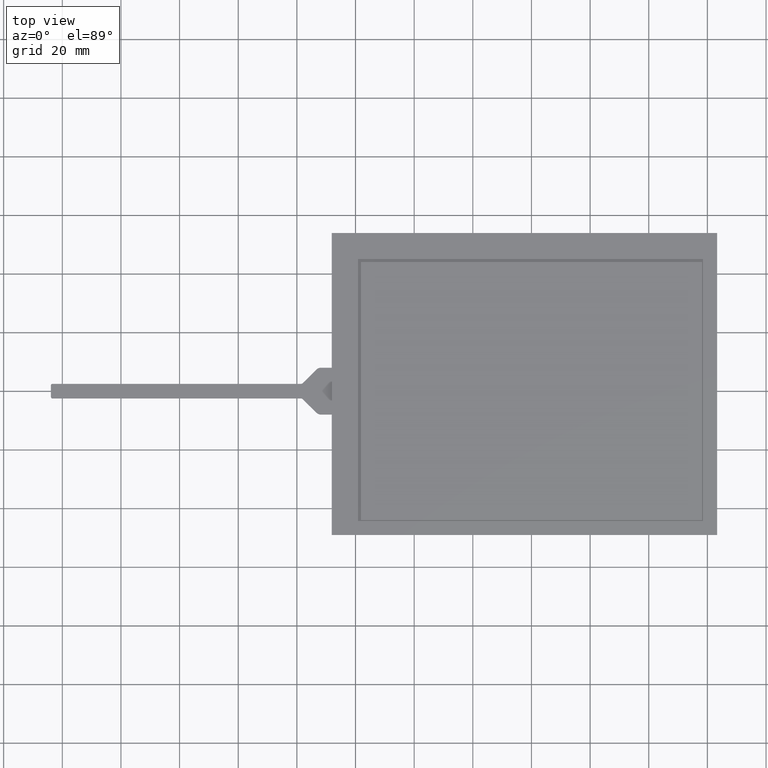
[diagram: clean part render]
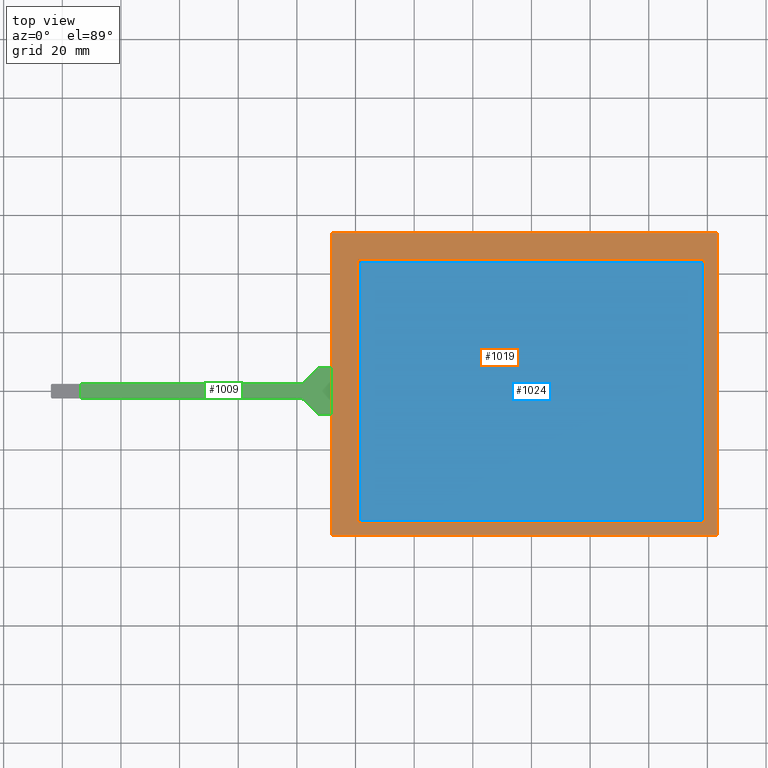
[diagram: same view with three faces highlighted in distinct colors, each labeled with its STEP entity id]
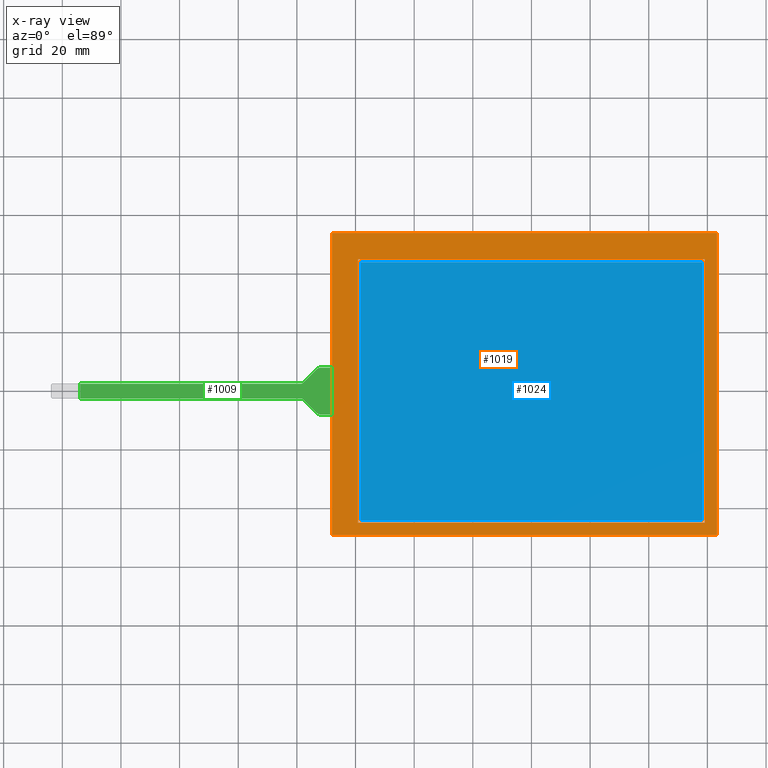
[diagram: x-ray of the same camera — body ghosted, the three highlighted faces saturated]
A machine part, top view with three faces highlighted in distinct colors.
The next image is the same camera in x-ray (body ghosted, the three faces saturated) — at least one of them is partly hidden behind the body in this view.
Their STEP definitions:

[orange] entity #1019 — the highlighted planar face has unit normal (0, 0, 1).
#47=FACE_BOUND('',#191,.T.);
#87=PLANE('',#1102);
#138=FACE_OUTER_BOUND('',#190,.T.);
#190=EDGE_LOOP('',(#933,#934,#935,#936));
#191=EDGE_LOOP('',(#937,#938,#939,#940));
#301=LINE('',#1596,#427);
#305=LINE('',#1604,#431);
#308=LINE('',#1610,#434);
#311=LINE('',#1615,#437);
#313=LINE('',#1621,#439);
#314=LINE('',#1623,#440);
#315=LINE('',#1625,#441);
#316=LINE('',#1626,#442);
#427=VECTOR('',#1317,10.);
#431=VECTOR('',#1323,10.);
#434=VECTOR('',#1328,10.);
#437=VECTOR('',#1333,10.);
#439=VECTOR('',#1339,10.);
#440=VECTOR('',#1340,10.);
#441=VECTOR('',#1341,10.);
#442=VECTOR('',#1342,10.);
#539=VERTEX_POINT('',#1594);
#540=VERTEX_POINT('',#1595);
#543=VERTEX_POINT('',#1603);
#545=VERTEX_POINT('',#1609);
#547=VERTEX_POINT('',#1619);
#548=VERTEX_POINT('',#1620);
#549=VERTEX_POINT('',#1622);
#550=VERTEX_POINT('',#1624);
#669=EDGE_CURVE('',#539,#540,#301,.T.);
#673=EDGE_CURVE('',#543,#539,#305,.T.);
#676=EDGE_CURVE('',#545,#543,#308,.T.);
#679=EDGE_CURVE('',#540,#545,#311,.T.);
#681=EDGE_CURVE('',#547,#548,#313,.T.);
#682=EDGE_CURVE('',#548,#549,#314,.T.);
#683=EDGE_CURVE('',#549,#550,#315,.T.);
#684=EDGE_CURVE('',#550,#547,#316,.T.);
#933=ORIENTED_EDGE('',*,*,#681,.T.);
#934=ORIENTED_EDGE('',*,*,#682,.T.);
#935=ORIENTED_EDGE('',*,*,#683,.T.);
#936=ORIENTED_EDGE('',*,*,#684,.T.);
#937=ORIENTED_EDGE('',*,*,#669,.T.);
#938=ORIENTED_EDGE('',*,*,#679,.T.);
#939=ORIENTED_EDGE('',*,*,#676,.T.);
#940=ORIENTED_EDGE('',*,*,#673,.T.);
#1019=ADVANCED_FACE('',(#138,#47),#87,.T.);
#1102=AXIS2_PLACEMENT_3D('',#1618,#1337,#1338);
#1317=DIRECTION('',(-1.97592529410484E-16,1.,0.));
#1323=DIRECTION('',(-1.,-7.50150692314295E-17,0.));
#1328=DIRECTION('',(9.8796264705242E-17,-1.,0.));
#1333=DIRECTION('',(1.,0.,0.));
#1337=DIRECTION('center_axis',(0.,0.,1.));
#1338=DIRECTION('ref_axis',(1.,0.,0.));
#1339=DIRECTION('',(-1.,0.,0.));
#1340=DIRECTION('',(1.72461829067985E-16,-1.,0.));
#1341=DIRECTION('',(1.,6.75934870395833E-17,0.));
#1342=DIRECTION('',(-8.62309145339927E-17,1.,0.));
#1594=CARTESIAN_POINT('',(-59.2,-44.95,0.));
#1595=CARTESIAN_POINT('',(-59.2,44.95,0.));
#1596=CARTESIAN_POINT('',(-59.2,-21.25,0.));
#1603=CARTESIAN_POINT('',(59.2,-44.95,0.));
#1604=CARTESIAN_POINT('',(28.4,-44.95,0.));
#1609=CARTESIAN_POINT('',(59.2,44.95,0.));
#1610=CARTESIAN_POINT('',(59.2,23.7,0.));
#1615=CARTESIAN_POINT('',(-30.8,44.95,0.));
#1618=CARTESIAN_POINT('Origin',(-2.39999999999998,2.45000000000002,0.));
#1619=CARTESIAN_POINT('',(63.3,53.95,0.));
#1620=CARTESIAN_POINT('',(-68.1,53.95,0.));
#1621=CARTESIAN_POINT('',(63.3,53.95,0.));
#1622=CARTESIAN_POINT('',(-68.1,-49.05,0.));
#1623=CARTESIAN_POINT('',(-68.1,53.95,0.));
#1624=CARTESIAN_POINT('',(63.3,-49.05,0.));
#1625=CARTESIAN_POINT('',(-68.1,-49.05,0.));
#1626=CARTESIAN_POINT('',(63.3,-49.05,0.));

[blue] entity #1024 — the highlighted planar face has unit normal (0, 0, 1).
#92=PLANE('',#1107);
#143=FACE_OUTER_BOUND('',#197,.T.);
#197=EDGE_LOOP('',(#961,#962,#963,#964));
#289=LINE('',#1572,#415);
#293=LINE('',#1580,#419);
#296=LINE('',#1586,#422);
#299=LINE('',#1591,#425);
#415=VECTOR('',#1297,10.);
#419=VECTOR('',#1303,10.);
#422=VECTOR('',#1308,10.);
#425=VECTOR('',#1313,10.);
#531=VERTEX_POINT('',#1570);
#532=VERTEX_POINT('',#1571);
#535=VERTEX_POINT('',#1579);
#537=VERTEX_POINT('',#1585);
#657=EDGE_CURVE('',#531,#532,#289,.T.);
#661=EDGE_CURVE('',#535,#531,#293,.T.);
#664=EDGE_CURVE('',#537,#535,#296,.T.);
#667=EDGE_CURVE('',#532,#537,#299,.T.);
#961=ORIENTED_EDGE('',*,*,#657,.T.);
#962=ORIENTED_EDGE('',*,*,#667,.T.);
#963=ORIENTED_EDGE('',*,*,#664,.T.);
#964=ORIENTED_EDGE('',*,*,#661,.T.);
#1024=ADVANCED_FACE('',(#143),#92,.T.);
#1107=AXIS2_PLACEMENT_3D('',#1643,#1359,#1360);
#1297=DIRECTION('',(1.,1.52607975893492E-16,0.));
#1303=DIRECTION('',(4.04176755267406E-16,-1.,0.));
#1308=DIRECTION('',(-1.,-6.10431903573969E-16,0.));
#1313=DIRECTION('',(-4.04176755267406E-16,1.,0.));
#1359=DIRECTION('center_axis',(0.,0.,1.));
#1360=DIRECTION('ref_axis',(1.,0.,0.));
#1570=CARTESIAN_POINT('',(-58.2,-43.95,0.));
#1571=CARTESIAN_POINT('',(58.2,-43.95,0.));
#1572=CARTESIAN_POINT('',(-30.3,-43.95,0.));
#1579=CARTESIAN_POINT('',(-58.2,43.95,0.));
#1580=CARTESIAN_POINT('',(-58.2,23.2,0.));
#1585=CARTESIAN_POINT('',(58.2,43.9500000000001,0.));
#1586=CARTESIAN_POINT('',(27.9,43.95,0.));
#1591=CARTESIAN_POINT('',(58.2,-20.75,0.));
#1643=CARTESIAN_POINT('Origin',(-2.39999999999998,2.45000000000002,0.));

[green] entity #1009 — the highlighted planar face has unit normal (0, 0, 1).
#77=PLANE('',#1092);
#128=FACE_OUTER_BOUND('',#179,.T.);
#179=EDGE_LOOP('',(#881,#882,#883,#884,#885,#886,#887,#888,#889,#890,#891,
#892));
#203=LINE('',#1378,#329);
#214=LINE('',#1408,#340);
#218=LINE('',#1421,#344);
#283=LINE('',#1558,#409);
#284=LINE('',#1560,#410);
#285=LINE('',#1563,#411);
#287=LINE('',#1566,#413);
#288=LINE('',#1568,#414);
#329=VECTOR('',#1123,10.);
#340=VECTOR('',#1148,10.);
#344=VECTOR('',#1162,10.);
#409=VECTOR('',#1281,10.);
#410=VECTOR('',#1284,10.);
#411=VECTOR('',#1287,10.);
#413=VECTOR('',#1291,10.);
#414=VECTOR('',#1294,10.);
#452=CIRCLE('',#1048,2.);
#456=CIRCLE('',#1055,2.);
#457=CIRCLE('',#1058,1.);
#458=CIRCLE('',#1060,1.);
#465=VERTEX_POINT('',#1368);
#466=VERTEX_POINT('',#1370);
#468=VERTEX_POINT('',#1376);
#478=VERTEX_POINT('',#1400);
#479=VERTEX_POINT('',#1402);
#480=VERTEX_POINT('',#1406);
#481=VERTEX_POINT('',#1410);
#482=VERTEX_POINT('',#1414);
#483=VERTEX_POINT('',#1415);
#484=VERTEX_POINT('',#1420);
#529=VERTEX_POINT('',#1556);
#530=VERTEX_POINT('',#1562);
#557=EDGE_CURVE('',#465,#466,#452,.T.);
#561=EDGE_CURVE('',#465,#468,#203,.T.);
#573=EDGE_CURVE('',#478,#479,#456,.T.);
#576=EDGE_CURVE('',#478,#480,#214,.T.);
#577=EDGE_CURVE('',#481,#468,#457,.T.);
#579=EDGE_CURVE('',#482,#483,#458,.T.);
#582=EDGE_CURVE('',#484,#483,#218,.T.);
#651=EDGE_CURVE('',#481,#529,#283,.T.);
#652=EDGE_CURVE('',#529,#484,#284,.T.);
#653=EDGE_CURVE('',#530,#466,#285,.T.);
#655=EDGE_CURVE('',#482,#479,#287,.T.);
#656=EDGE_CURVE('',#530,#480,#288,.T.);
#881=ORIENTED_EDGE('',*,*,#557,.F.);
#882=ORIENTED_EDGE('',*,*,#561,.T.);
#883=ORIENTED_EDGE('',*,*,#577,.F.);
#884=ORIENTED_EDGE('',*,*,#651,.T.);
#885=ORIENTED_EDGE('',*,*,#652,.T.);
#886=ORIENTED_EDGE('',*,*,#582,.T.);
#887=ORIENTED_EDGE('',*,*,#579,.F.);
#888=ORIENTED_EDGE('',*,*,#655,.T.);
#889=ORIENTED_EDGE('',*,*,#573,.F.);
#890=ORIENTED_EDGE('',*,*,#576,.T.);
#891=ORIENTED_EDGE('',*,*,#656,.F.);
#892=ORIENTED_EDGE('',*,*,#653,.T.);
#1009=ADVANCED_FACE('',(#128),#77,.T.);
#1048=AXIS2_PLACEMENT_3D('',#1371,#1116,#1117);
#1055=AXIS2_PLACEMENT_3D('',#1403,#1142,#1143);
#1058=AXIS2_PLACEMENT_3D('',#1411,#1151,#1152);
#1060=AXIS2_PLACEMENT_3D('',#1416,#1156,#1157);
#1092=AXIS2_PLACEMENT_3D('',#1567,#1292,#1293);
#1116=DIRECTION('center_axis',(0.,0.,-1.));
#1117=DIRECTION('ref_axis',(-0.379345698749704,0.925255013950262,0.));
#1123=DIRECTION('',(-0.712193681680198,-0.701983019577258,0.));
#1142=DIRECTION('center_axis',(0.,0.,-1.));
#1143=DIRECTION('ref_axis',(-0.379345698749704,-0.925255013950262,0.));
#1148=DIRECTION('',(1.,0.,0.));
#1151=DIRECTION('center_axis',(0.,0.,1.));
#1152=DIRECTION('ref_axis',(0.379345698749705,-0.925255013950261,0.));
#1156=DIRECTION('center_axis',(0.,0.,1.));
#1157=DIRECTION('ref_axis',(0.379345698749704,0.925255013950262,0.));
#1162=DIRECTION('',(1.,3.8897810985069E-17,0.));
#1281=DIRECTION('',(-1.,1.94489054925345E-17,0.));
#1284=DIRECTION('',(0.,-1.,0.));
#1287=DIRECTION('',(-1.,0.,0.));
#1291=DIRECTION('',(0.712193681680199,-0.701983019577257,0.));
#1292=DIRECTION('center_axis',(0.,0.,1.));
#1293=DIRECTION('ref_axis',(1.,0.,0.));
#1294=DIRECTION('',(1.72461829067985E-16,-1.,0.));
#1368=CARTESIAN_POINT('',(-73.2539851840816,7.42438736336042,-0.2));
#1370=CARTESIAN_POINT('',(-71.8500191449271,8.00000000000001,-0.2));
#1371=CARTESIAN_POINT('Origin',(-71.8500191449271,6.00000000000001,-0.2));
#1376=CARTESIAN_POINT('',(-77.9580074079591,2.78780631831982,-0.2));
#1378=CARTESIAN_POINT('',(-72.67,8.00000000000001,-0.2));
#1400=CARTESIAN_POINT('',(-71.8500191449271,-7.99999999999999,-0.2));
#1402=CARTESIAN_POINT('',(-73.2539851840816,-7.42438736336039,-0.2));
#1403=CARTESIAN_POINT('Origin',(-71.8500191449271,-5.99999999999999,-0.2));
#1406=CARTESIAN_POINT('',(-68.1,-7.99999999999999,-0.2));
#1408=CARTESIAN_POINT('',(-72.67,-7.99999999999999,-0.2));
#1410=CARTESIAN_POINT('',(-78.6599904275364,2.50000000000001,-0.2));
#1411=CARTESIAN_POINT('Origin',(-78.6599904275364,3.50000000000001,-0.2));
#1414=CARTESIAN_POINT('',(-77.9580074079592,-2.78780631831979,-0.2));
#1415=CARTESIAN_POINT('',(-78.6599904275364,-2.49999999999998,-0.2));
#1416=CARTESIAN_POINT('Origin',(-78.6599904275364,-3.49999999999999,-0.2));
#1420=CARTESIAN_POINT('',(-153.876131381891,-2.49999999999999,-0.2));
#1421=CARTESIAN_POINT('',(-163.876131381891,-2.49999999999999,-0.2));
#1556=CARTESIAN_POINT('',(-153.876131381891,2.50000000000001,-0.2));
#1558=CARTESIAN_POINT('',(-78.25,2.50000000000001,-0.2));
#1560=CARTESIAN_POINT('',(-153.876131381891,-1.24999999999999,-0.2));
#1562=CARTESIAN_POINT('',(-68.1,8.00000000000001,-0.2));
#1563=CARTESIAN_POINT('',(-68.1,8.00000000000001,-0.2));
#1566=CARTESIAN_POINT('',(-78.25,-2.49999999999998,-0.2));
#1567=CARTESIAN_POINT('Origin',(-115.988065690945,1.22124532708767E-14,
-0.2));
#1568=CARTESIAN_POINT('',(-68.1,-24.525,-0.2));